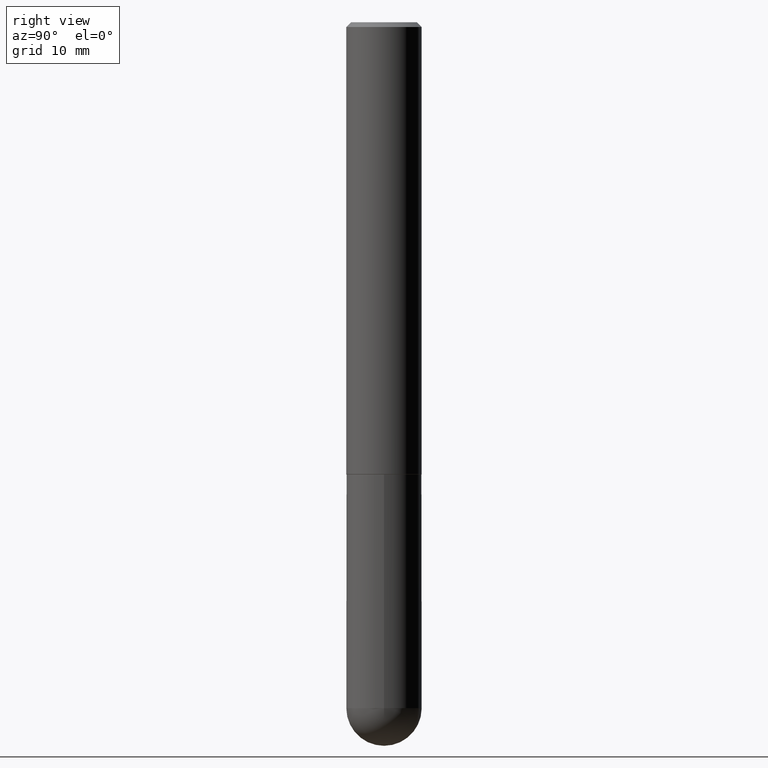
[diagram: clean part render]
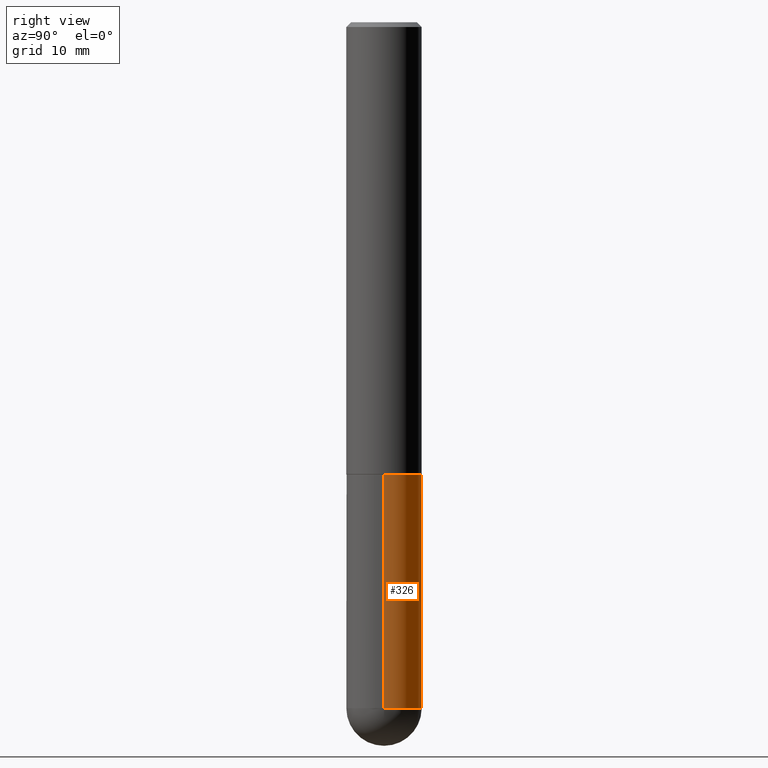
[diagram: same view with one face highlighted and labeled with its STEP entity id]
A machine part, right view. The second image highlights one B-rep face of the part: STEP entity #326.
In plain terms, the highlighted cylindrical surface (partial cylindrical patch) has radius 3.9688 mm, axis along (-0, 0, 1).
Its self-contained STEP definition (entity closure, byte-faithful):
#9 = CARTESIAN_POINT ( 'NONE',  ( -0.1562500000000000000, -7.127490759207891394E-15, -2.843750000000000000 ) ) ;
#17 = CIRCLE ( 'NONE', #202, 0.1562500000000000000 ) ;
#22 = CARTESIAN_POINT ( 'NONE',  ( -0.1562500000000000000, 1.110223024625156540E-15, -7.685836078523291160E-30 ) ) ;
#23 = CARTESIAN_POINT ( 'NONE',  ( 0.1562500000000000000, -9.328801702221526319E-15, -2.843750000000000000 ) ) ;
#39 = EDGE_LOOP ( 'NONE', ( #222, #381, #385, #191, #221 ) ) ;
#51 = CARTESIAN_POINT ( 'NONE',  ( 0.1562500000000000000, -1.091087918388479174E-15, 7.619026212181150377E-30 ) ) ;
#63 = DIRECTION ( 'NONE',  ( -2.445468806185136597E-29, 3.491481338843145583E-15, 1.000000000000000000 ) ) ;
#86 = DIRECTION ( 'NONE',  ( 1.000000000000000000, -6.982962677686262766E-15, 0.000000000000000000 ) ) ;
#93 = DIRECTION ( 'NONE',  ( -2.445468806185136597E-29, 3.491481338843145583E-15, 1.000000000000000000 ) ) ;
#110 = AXIS2_PLACEMENT_3D ( 'NONE', #405, #253, #148 ) ;
#112 = FACE_OUTER_BOUND ( 'NONE', #39, .T. ) ;
#113 = VERTEX_POINT ( 'NONE', #188 ) ;
#125 = DIRECTION ( 'NONE',  ( 1.000000000000000000, -6.982962677686262766E-15, 0.000000000000000000 ) ) ;
#133 = CIRCLE ( 'NONE', #110, 0.1562500000000000000 ) ;
#142 = CARTESIAN_POINT ( 'NONE',  ( 0.1562500000000000000, -7.637615428719378669E-15, -1.875000000000000000 ) ) ;
#145 = AXIS2_PLACEMENT_3D ( 'NONE', #280, #313, #177 ) ;
#146 = CYLINDRICAL_SURFACE ( 'NONE', #145, 0.1562500000000000000 ) ;
#148 = DIRECTION ( 'NONE',  ( 1.000000000000000000, -6.982962677686269077E-15, 0.000000000000000000 ) ) ;
#154 = DIRECTION ( 'NONE',  ( -2.445468806185136877E-29, 3.491481338843145188E-15, 1.000000000000000000 ) ) ;
#168 = AXIS2_PLACEMENT_3D ( 'NONE', #220, #63, #125 ) ;
#173 = LINE ( 'NONE', #22, #395 ) ;
#177 = DIRECTION ( 'NONE',  ( 1.000000000000000000, -6.982962677686266711E-15, 4.876176775795936353E-29 ) ) ;
#180 = DIRECTION ( 'NONE',  ( -2.445468806185136877E-29, 3.491481338843145188E-15, 1.000000000000000000 ) ) ;
#185 = EDGE_CURVE ( 'NONE', #346, #299, #133, .T. ) ;
#188 = CARTESIAN_POINT ( 'NONE',  ( 1.091087918388548199E-15, 0.1562499999999900357, -2.843750000000000444 ) ) ;
#191 = ORIENTED_EDGE ( 'NONE', *, *, #308, .F. ) ;
#202 = AXIS2_PLACEMENT_3D ( 'NONE', #212, #93, #86 ) ;
#212 = CARTESIAN_POINT ( 'NONE',  ( 6.954301917588981076E-29, -9.928900057335195583E-15, -2.843750000000000000 ) ) ;
#220 = CARTESIAN_POINT ( 'NONE',  ( 6.954301917588981076E-29, -9.928900057335195583E-15, -2.843750000000000000 ) ) ;
#221 = ORIENTED_EDGE ( 'NONE', *, *, #269, .T. ) ;
#222 = ORIENTED_EDGE ( 'NONE', *, *, #412, .T. ) ;
#233 = CIRCLE ( 'NONE', #168, 0.1562500000000000000 ) ;
#253 = DIRECTION ( 'NONE',  ( -2.445468806185136597E-29, 3.491481338843145583E-15, 1.000000000000000000 ) ) ;
#254 = VERTEX_POINT ( 'NONE', #9 ) ;
#269 = EDGE_CURVE ( 'NONE', #328, #113, #17, .T. ) ;
#280 = CARTESIAN_POINT ( 'NONE',  ( 0.000000000000000000, 0.000000000000000000, 0.000000000000000000 ) ) ;
#299 = VERTEX_POINT ( 'NONE', #316 ) ;
#303 = VECTOR ( 'NONE', #180, 39.37007874015748143 ) ;
#308 = EDGE_CURVE ( 'NONE', #328, #346, #343, .T. ) ;
#310 = EDGE_CURVE ( 'NONE', #254, #299, #173, .T. ) ;
#313 = DIRECTION ( 'NONE',  ( -2.445468806185136597E-29, 3.491481338843145583E-15, 1.000000000000000000 ) ) ;
#316 = CARTESIAN_POINT ( 'NONE',  ( -0.1562500000000000000, -7.127490759207891394E-15, -1.875000000000000000 ) ) ;
#326 = ADVANCED_FACE ( 'NONE', ( #112 ), #146, .T. ) ;
#328 = VERTEX_POINT ( 'NONE', #23 ) ;
#343 = LINE ( 'NONE', #51, #303 ) ;
#346 = VERTEX_POINT ( 'NONE', #142 ) ;
#381 = ORIENTED_EDGE ( 'NONE', *, *, #310, .T. ) ;
#385 = ORIENTED_EDGE ( 'NONE', *, *, #185, .F. ) ;
#395 = VECTOR ( 'NONE', #154, 39.37007874015748143 ) ;
#405 = CARTESIAN_POINT ( 'NONE',  ( 4.585254011597131119E-29, -6.546527510330898707E-15, -1.875000000000000000 ) ) ;
#412 = EDGE_CURVE ( 'NONE', #113, #254, #233, .T. ) ;